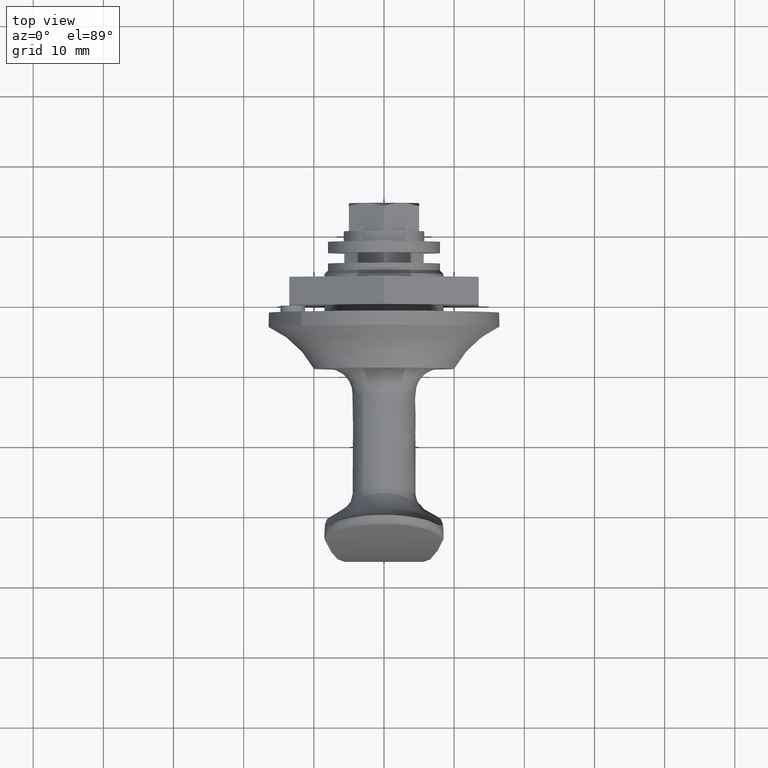
[diagram: clean part render]
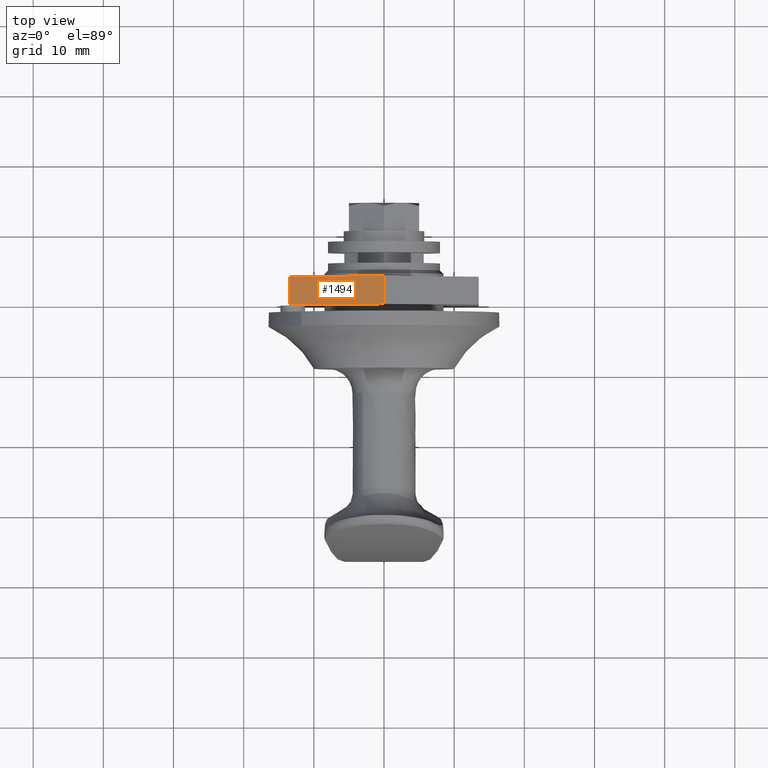
[diagram: same view with one face highlighted and labeled with its STEP entity id]
A machine part, top view. The second image highlights one B-rep face of the part: STEP entity #1494.
In plain terms, the highlighted face is a freeform B-spline surface patch.
Its self-contained STEP definition (entity closure, byte-faithful):
#1330=CARTESIAN_POINT('',(-13.500000000000000,13.0,7.795000000000099));
#1331=VERTEX_POINT('',#1330);
#1337=CARTESIAN_POINT('',(0.0,13.0,15.589000000000000));
#1338=VERTEX_POINT('',#1337);
#1339=CARTESIAN_POINT('',(-13.500000000000000,13.0,7.795000000000099));
#1340=CARTESIAN_POINT('',(0.0,13.0,15.589000000000000));
#1341=QUASI_UNIFORM_CURVE('',1,(#1339,#1340),.UNSPECIFIED.,.F.,.U.);
#1342=EDGE_CURVE('',#1331,#1338,#1341,.T.);
#1457=CARTESIAN_POINT('',(0.0,9.0,15.589000000000000));
#1458=VERTEX_POINT('',#1457);
#1459=CARTESIAN_POINT('',(0.0,9.0,15.589000000000000));
#1460=CARTESIAN_POINT('',(0.0,13.0,15.589000000000000));
#1461=QUASI_UNIFORM_CURVE('',1,(#1459,#1460),.UNSPECIFIED.,.F.,.U.);
#1462=EDGE_CURVE('',#1458,#1338,#1461,.T.);
#1473=CARTESIAN_POINT('',(-14.174324973834381,8.800200007752775,7.405689715106389));
#1474=CARTESIAN_POINT('',(0.674325335932601,8.800200007752775,15.978310493945081));
#1475=CARTESIAN_POINT('',(-14.174324973834381,13.199800099535590,7.405689715106389));
#1476=CARTESIAN_POINT('',(0.674325335932601,13.199800099535590,15.978310493945081));
#1477=B_SPLINE_SURFACE_WITH_KNOTS('',1,1,((#1473,#1475),(#1474,#1476)),.UNSPECIFIED.,.F.,.F.,.U.,(2,2),(2,2),(0.0,17.145618770972369),(0.0,4.399600091782812),.UNSPECIFIED.);
#1478=ORIENTED_EDGE('',*,*,#1342,.F.);
#1479=CARTESIAN_POINT('',(-13.500000000000000,9.0,7.795000000000099));
#1480=VERTEX_POINT('',#1479);
#1481=CARTESIAN_POINT('',(-13.500000000000000,9.0,7.795000000000099));
#1482=CARTESIAN_POINT('',(-13.500000000000000,13.0,7.795000000000099));
#1483=QUASI_UNIFORM_CURVE('',1,(#1481,#1482),.UNSPECIFIED.,.F.,.U.);
#1484=EDGE_CURVE('',#1480,#1331,#1483,.T.);
#1485=ORIENTED_EDGE('',*,*,#1484,.F.);
#1486=CARTESIAN_POINT('',(-13.500000000000000,9.0,7.795000000000099));
#1487=CARTESIAN_POINT('',(0.0,9.0,15.589000000000000));
#1488=QUASI_UNIFORM_CURVE('',1,(#1486,#1487),.UNSPECIFIED.,.F.,.U.);
#1489=EDGE_CURVE('',#1480,#1458,#1488,.T.);
#1490=ORIENTED_EDGE('',*,*,#1489,.T.);
#1491=ORIENTED_EDGE('',*,*,#1462,.T.);
#1492=EDGE_LOOP('',(#1478,#1485,#1490,#1491));
#1493=FACE_OUTER_BOUND('',#1492,.T.);
#1494=ADVANCED_FACE('',(#1493),#1477,.T.);